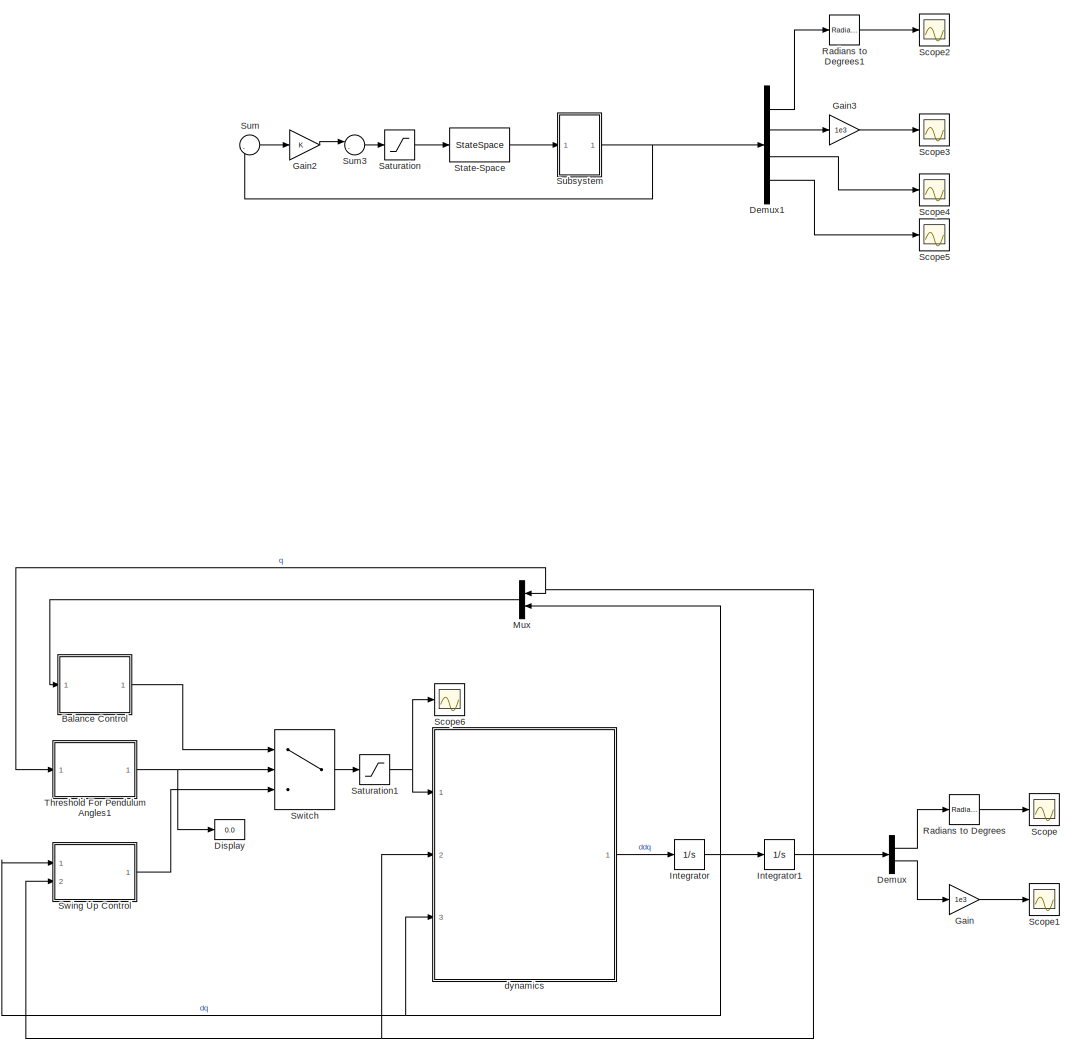
[diagram: root canvas - part 1/2, right side, full height]
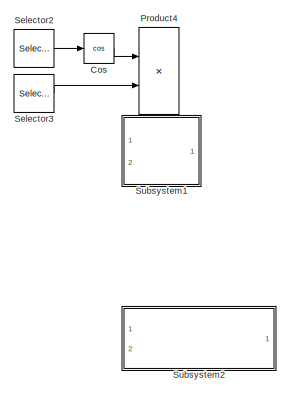
[diagram: root canvas - part 2/2, bottom left region]
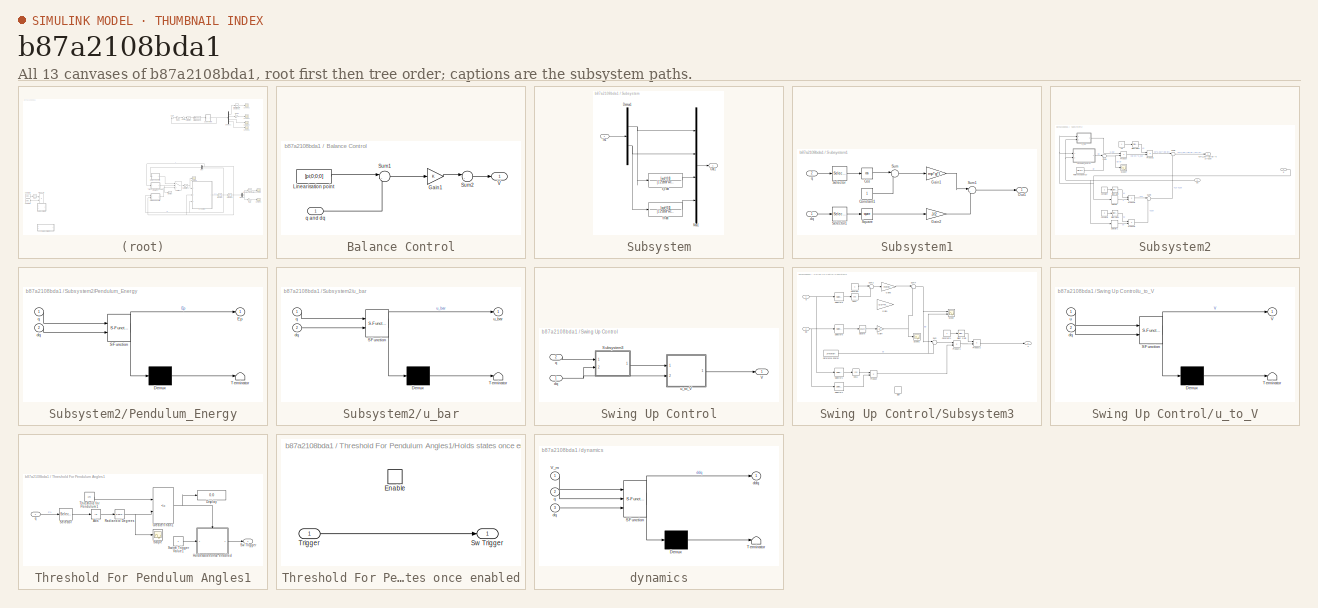
[diagram: thumbnail index - all 13 canvases of the model, root first then tree order]
MODEL slx_b87a2108bda1
KIND model
CONFIG AbsTol = auto
CONFIG EnableMultiTasking = off
CONFIG FixedStep = 0.002
CONFIG MaxStep = auto
CONFIG MinStep = auto
CONFIG RelTol = 1e-3
CONFIG SampleTimeConstraint = Unconstrained
CONFIG SolverName = ode4
CONFIG StartTime = 0.0
CONFIG StopTime = 60
BLOCK [SubSystem] Balance Control
  Ports = [1, 1]
  RequestExecContextInheritance = off
BLOCK [Gain] Balance Control/Gain1
  Gain = K
  Multiplication = Matrix(K*u)
BLOCK [Constant] Balance Control/Linearisation point
  Value = [pi;0;0;0]
BLOCK [Sum] Balance Control/Sum1
  Inputs = |-+
  Ports = [2, 1]
BLOCK [Sum] Balance Control/Sum2
  Inputs = |-+
  Ports = [2, 1]
BLOCK [Outport] Balance Control/V
BLOCK [Inport] Balance Control/q and dq
BLOCK [Trigonometry] Cos
  Commented = on
  Operator = cos
  Ports = [1, 1]
BLOCK [Demux] Demux
  Outputs = 2
  Ports = [1, 2]
BLOCK [Demux] Demux1
  Ports = [1, 4]
BLOCK [Display] Display
  Decimation = 1
  Ports = [1]
BLOCK [Gain] Gain
  Gain = 1e3
BLOCK [Gain] Gain2
  Gain = K
  Multiplication = Matrix(K*u)
BLOCK [Gain] Gain3
  Gain = 1e3
BLOCK [Integrator] Integrator
  InitialCondition = [0 0]
  Ports = [1, 1]
BLOCK [Integrator] Integrator1
  InitialCondition = [5*pi/180 0]
  Ports = [1, 1]
BLOCK [Mux] Mux
  DisplayOption = bar
  Inputs = 2
  Ports = [2, 1]
BLOCK [Product] Product4
  Commented = on
  Ports = [2, 1]
BLOCK [Reference] Radians to Degrees  REF=simulink_extras/Transformations/Radians
to Degrees
  Ports = [1, 1]
  SourceBlock = simulink_extras/Transformations/Radians\nto Degrees
  SourceProductBaseCode = SL
  SourceType = RadiansToDegrees
BLOCK [Reference] Radians to Degrees1  REF=simulink_extras/Transformations/Radians
to Degrees
  Ports = [1, 1]
  SourceBlock = simulink_extras/Transformations/Radians\nto Degrees
  SourceProductBaseCode = SL
  SourceType = RadiansToDegrees
BLOCK [Saturate] Saturation
  LowerLimit = -24
  UpperLimit = 24
BLOCK [Saturate] Saturation1
  LowerLimit = -24
  UpperLimit = 24
BLOCK [Scope] Scope
  Floating = off
  NumInputPorts = 1
  Ports = [1]
  ScopeSpecificationString = Simulink.scopes.TimeScopeBlockCfg('CurrentConfiguration', extmgr.ConfigurationSet(extmgr.Configuration('Core','General UI',true),extmgr.Configuration('Core','Source UI',true),extmgr.Configuration('Sources','WiredSimulink',true,'DataLogging',true,'DataLoggingVariableName','th1_SIM','DataLoggingSaveFormat','Array'),extmgr.Configuration('Visuals','Time Domain',true,'SerializedDisplays',{struct('MinYL...<+1496ch>
BLOCK [Scope] Scope1
  Floating = off
  NumInputPorts = 1
  Ports = [1]
  ScopeSpecificationString = Simulink.scopes.TimeScopeBlockCfg('CurrentConfiguration', extmgr.ConfigurationSet(extmgr.Configuration('Core','General UI',true),extmgr.Configuration('Core','Source UI',true),extmgr.Configuration('Sources','WiredSimulink',true,'DataLoggingVariableName','xc_SIM','DataLogging',true,'DataLoggingSaveFormat','Array'),extmgr.Configuration('Visuals','Time Domain',true,'SerializedDisplays',{struct('MinYLi...<+1424ch>
BLOCK [Scope] Scope2
  Floating = off
  NumInputPorts = 1
  Ports = [1]
  ScopeSpecificationString = Simulink.scopes.TimeScopeBlockCfg('CurrentConfiguration', extmgr.ConfigurationSet(extmgr.Configuration('Core','General UI',true),extmgr.Configuration('Core','Source UI',true),extmgr.Configuration('Sources','WiredSimulink',true,'DataLoggingVariableName','ScopeData2'),extmgr.Configuration('Visuals','Time Domain',true,'SerializedDisplays',{struct('MinYLimReal','-36.26143','MaxYLimReal','54.02905','YL...<+1764ch>
BLOCK [Scope] Scope3
  Floating = off
  NumInputPorts = 1
  Ports = [1]
  ScopeSpecificationString = Simulink.scopes.TimeScopeBlockCfg('CurrentConfiguration', extmgr.ConfigurationSet(extmgr.Configuration('Core','General UI',true),extmgr.Configuration('Core','Source UI',true),extmgr.Configuration('Sources','WiredSimulink',true,'DataLoggingVariableName','ScopeData3'),extmgr.Configuration('Visuals','Time Domain',true,'SerializedDisplays',{struct('MinYLimReal','-996.91017','MaxYLimReal','111.98601','...<+1378ch>
BLOCK [Scope] Scope4
  Floating = off
  NumInputPorts = 1
  Ports = [1]
  ScopeSpecificationString = Simulink.scopes.TimeScopeBlockCfg('CurrentConfiguration', extmgr.ConfigurationSet(extmgr.Configuration('Core','General UI',true),extmgr.Configuration('Core','Source UI',true),extmgr.Configuration('Sources','WiredSimulink',true,'DataLoggingVariableName','ScopeData4'),extmgr.Configuration('Visuals','Time Domain',true,'SerializedDisplays',{struct('MinYLimReal','-6.4718','MaxYLimReal','22.09201','YLab...<+1369ch>
BLOCK [Scope] Scope5
  Floating = off
  NumInputPorts = 1
  Ports = [1]
  ScopeSpecificationString = Simulink.scopes.TimeScopeBlockCfg('CurrentConfiguration', extmgr.ConfigurationSet(extmgr.Configuration('Core','General UI',true),extmgr.Configuration('Core','Source UI',true),extmgr.Configuration('Sources','WiredSimulink',true,'DataLoggingVariableName','ScopeData5'),extmgr.Configuration('Visuals','Time Domain',true),extmgr.Configuration('Tools','Plot Navigation',true),extmgr.Configuration('Tools',...<+40ch>
BLOCK [Scope] Scope6
  Floating = off
  NumInputPorts = 1
  Ports = [1]
  ScopeSpecificationString = Simulink.scopes.TimeScopeBlockCfg('CurrentConfiguration', extmgr.ConfigurationSet(extmgr.Configuration('Core','General UI',true),extmgr.Configuration('Core','Source UI',true),extmgr.Configuration('Sources','WiredSimulink',true,'DataLoggingVariableName','ScopeData6'),extmgr.Configuration('Visuals','Time Domain',true,'SerializedDisplays',{struct('MinYLimReal','-17.29914','MaxYLimReal','17.27034','YL...<+1376ch>
BLOCK [Selector] Selector2
  Commented = on
  IndexOptions = Index vector (dialog)
  Indices = [1]
  InputPortWidth = 2
  OutputSizes = 1
  Ports = [1, 1]
BLOCK [Selector] Selector3
  Commented = on
  IndexOptions = Index vector (dialog)
  Indices = [1]
  InputPortWidth = 2
  OutputSizes = 1
  Ports = [1, 1]
BLOCK [StateSpace] State-Space
  A = A
  B = B
  C = C1
  D = D
  InitialCondition = [45*pi/180 0 0 0]
  Ports = [1, 1]
BLOCK [SubSystem] Subsystem
  Ports = [1, 1]
  RequestExecContextInheritance = off
BLOCK [Demux] Subsystem/Demux1
  Outputs = 2
  Ports = [1, 2]
BLOCK [Inport] Subsystem/In1
BLOCK [Mux] Subsystem/Mux1
  DisplayOption = bar
  Ports = [4, 1]
BLOCK [Outport] Subsystem/Out1
BLOCK [TransferFcn] Subsystem/th dot
  Denominator = [1 2*zetaf*wcf wcf^2]
  Numerator = [wcf^2 0]
BLOCK [TransferFcn] Subsystem/x_c dot
  Denominator = [1 2*zetaf*wcf wcf^2]
  Numerator = [wcf^2 0]
BLOCK [SubSystem] Subsystem1
  Commented = on
  Ports = [2, 1]
  RequestExecContextInheritance = off
BLOCK [Constant] Subsystem1/Constant1
BLOCK [Trigonometry] Subsystem1/Cos
  Operator = cos
  Ports = [1, 1]
BLOCK [Gain] Subsystem1/Gain1
  Gain = mp*g*l
BLOCK [Gain] Subsystem1/Gain2
  Gain = J/2
BLOCK [Outport] Subsystem1/Out1
BLOCK [Selector] Subsystem1/Selector
  IndexOptions = Index vector (dialog)
  Indices = [1]
  InputPortWidth = 2
  OutputSizes = 1
  Ports = [1, 1]
BLOCK [Selector] Subsystem1/Selector1
  IndexOptions = Index vector (dialog)
  Indices = [1]
  InputPortWidth = 2
  OutputSizes = 1
  Ports = [1, 1]
BLOCK [Math] Subsystem1/Square
  Operator = square
  Ports = [1, 1]
BLOCK [Sum] Subsystem1/Sum
  Inputs = |-+
  Ports = [2, 1]
BLOCK [Sum] Subsystem1/Sum1
  Inputs = |++
  Ports = [2, 1]
BLOCK [Inport] Subsystem1/dq
BLOCK [Inport] Subsystem1/q
  Port = 2
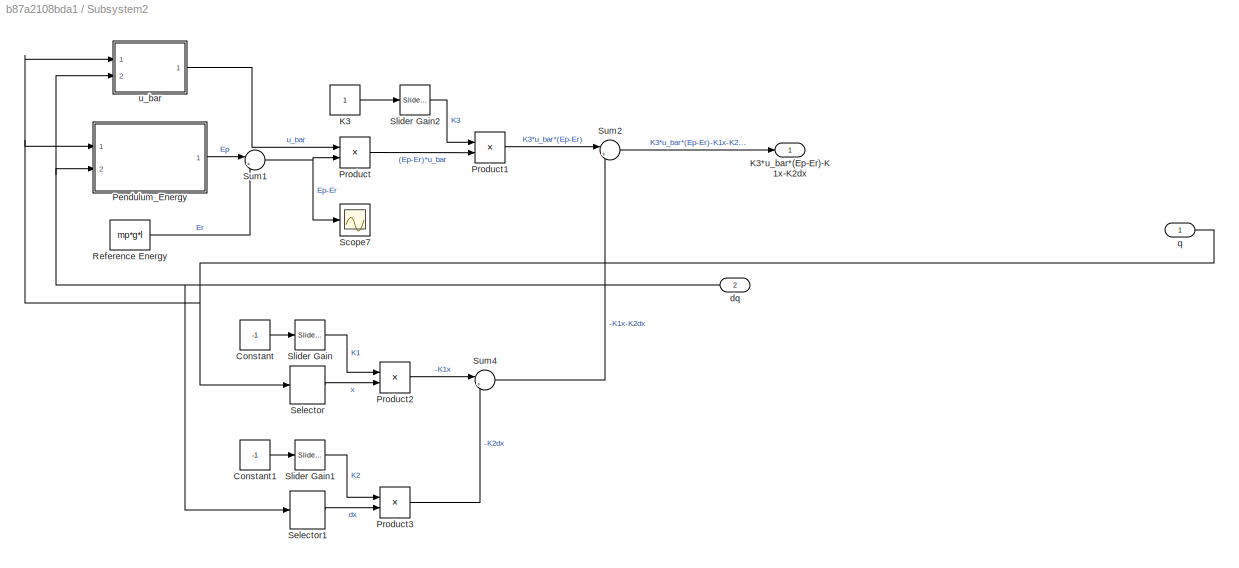
BLOCK [SubSystem] Subsystem2
  Commented = on
  Ports = [2, 1]
  RequestExecContextInheritance = off
BLOCK [Constant] Subsystem2/Constant
  Value = -1
BLOCK [Constant] Subsystem2/Constant1
  Value = -1
BLOCK [Constant] Subsystem2/K3
BLOCK [Outport] Subsystem2/K3*u_bar*(Ep-Er)-K1x-K2dx
BLOCK [SubSystem] Subsystem2/Pendulum_Energy
  ErrorFcn = Stateflow.Translate.translate
  PermitHierarchicalResolution = ExplicitOnly
  Ports = [2, 1]
  RequestExecContextInheritance = off
  SFBlockType = MATLAB Function
  TreatAsAtomicUnit = on
BLOCK [Demux] Subsystem2/Pendulum_Energy/ Demux 
  Outputs = 1
  Ports = [1, 1]
BLOCK [S-Function] Subsystem2/Pendulum_Energy/ SFunction 
  EnableBusSupport = on
  FunctionName = sf_sfun
  PortCounts = [2 2]
  Ports = [2, 2]
  SFcnIsStateOwnerBlock = off
  SFunctionDeploymentMode = off
  Tag = Stateflow S-Function 1
BLOCK [Terminator] Subsystem2/Pendulum_Energy/ Terminator 
BLOCK [Outport] Subsystem2/Pendulum_Energy/Ep
BLOCK [Inport] Subsystem2/Pendulum_Energy/dq
  Port = 2
BLOCK [Inport] Subsystem2/Pendulum_Energy/q
BLOCK [Product] Subsystem2/Product
  Ports = [2, 1]
BLOCK [Product] Subsystem2/Product1
  Ports = [2, 1]
BLOCK [Product] Subsystem2/Product2
  Ports = [2, 1]
BLOCK [Product] Subsystem2/Product3
  Ports = [2, 1]
BLOCK [Constant] Subsystem2/Reference Energy
  Value = mp*g*l
BLOCK [Scope] Subsystem2/Scope7
  Floating = off
  NumInputPorts = 1
  Ports = [1]
  ScopeSpecificationString = Simulink.scopes.TimeScopeBlockCfg('CurrentConfiguration', extmgr.ConfigurationSet(extmgr.Configuration('Core','General UI',true),extmgr.Configuration('Core','Source UI',true),extmgr.Configuration('Sources','WiredSimulink',true,'DataLoggingVariableName','ScopeData7'),extmgr.Configuration('Visuals','Time Domain',true,'SerializedDisplays',{struct('MinYLimReal','-1.49026','MaxYLimReal','-1.48618','YLa...<+1391ch>
BLOCK [Selector] Subsystem2/Selector
  IndexOptions = Index vector (dialog)
  Indices = [2]
  InputPortWidth = 2
  OutputSizes = 1
  Ports = [1, 1]
BLOCK [Selector] Subsystem2/Selector1
  IndexOptions = Index vector (dialog)
  Indices = [2]
  InputPortWidth = 2
  OutputSizes = 1
  Ports = [1, 1]
BLOCK [Reference] Subsystem2/Slider Gain  REF=simulink/Math
Operations/Slider
Gain
  Ports = [1, 1]
  SourceBlock = simulink/Math\nOperations/Slider\nGain
  SourceProductBaseCode = SL
  SourceType = Slider Gain
BLOCK [Reference] Subsystem2/Slider Gain1  REF=simulink/Math
Operations/Slider
Gain
  Ports = [1, 1]
  SourceBlock = simulink/Math\nOperations/Slider\nGain
  SourceProductBaseCode = SL
  SourceType = Slider Gain
BLOCK [Reference] Subsystem2/Slider Gain2  REF=simulink/Math
Operations/Slider
Gain
  Ports = [1, 1]
  SourceBlock = simulink/Math\nOperations/Slider\nGain
  SourceProductBaseCode = SL
  SourceType = Slider Gain
BLOCK [Sum] Subsystem2/Sum1
  Inputs = |+-
  Ports = [2, 1]
BLOCK [Sum] Subsystem2/Sum2
  Inputs = |++
  Ports = [2, 1]
BLOCK [Sum] Subsystem2/Sum4
  Inputs = |++
  Ports = [2, 1]
BLOCK [Inport] Subsystem2/dq
  Port = 2
BLOCK [Inport] Subsystem2/q
BLOCK [SubSystem] Subsystem2/u_bar
  ErrorFcn = Stateflow.Translate.translate
  PermitHierarchicalResolution = ExplicitOnly
  Ports = [2, 1]
  RequestExecContextInheritance = off
  SFBlockType = MATLAB Function
  TreatAsAtomicUnit = on
BLOCK [Demux] Subsystem2/u_bar/ Demux 
  Outputs = 1
  Ports = [1, 1]
BLOCK [S-Function] Subsystem2/u_bar/ SFunction 
  EnableBusSupport = on
  FunctionName = sf_sfun
  PortCounts = [2 2]
  Ports = [2, 2]
  SFcnIsStateOwnerBlock = off
  SFunctionDeploymentMode = off
  Tag = Stateflow S-Function 3
BLOCK [Terminator] Subsystem2/u_bar/ Terminator 
BLOCK [Inport] Subsystem2/u_bar/dq
  Port = 2
BLOCK [Inport] Subsystem2/u_bar/q
BLOCK [Outport] Subsystem2/u_bar/u_bar
BLOCK [Sum] Sum
  Inputs = |-+
  Ports = [2, 1]
BLOCK [Sum] Sum3
  Inputs = |-+
  Ports = [2, 1]
BLOCK [SubSystem] Swing Up Control
  Ports = [2, 1]
  RequestExecContextInheritance = off
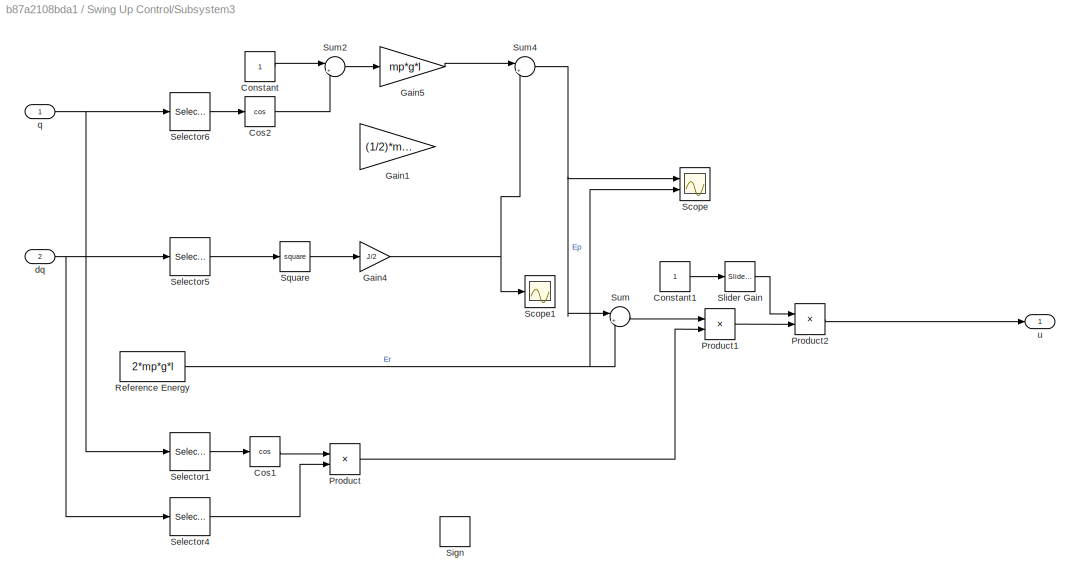
BLOCK [SubSystem] Swing Up Control/Subsystem3
  Ports = [2, 1]
  RequestExecContextInheritance = off
BLOCK [Constant] Swing Up Control/Subsystem3/Constant
BLOCK [Constant] Swing Up Control/Subsystem3/Constant1
BLOCK [Trigonometry] Swing Up Control/Subsystem3/Cos1
  Operator = cos
  Ports = [1, 1]
BLOCK [Trigonometry] Swing Up Control/Subsystem3/Cos2
  Operator = cos
  Ports = [1, 1]
BLOCK [Gain] Swing Up Control/Subsystem3/Gain1
  Commented = on
  Gain = (1/2)*mp*l^2
BLOCK [Gain] Swing Up Control/Subsystem3/Gain4
  Gain = J/2
BLOCK [Gain] Swing Up Control/Subsystem3/Gain5
  Gain = mp*g*l
BLOCK [Product] Swing Up Control/Subsystem3/Product
  Ports = [2, 1]
BLOCK [Product] Swing Up Control/Subsystem3/Product1
  Ports = [2, 1]
BLOCK [Product] Swing Up Control/Subsystem3/Product2
  Ports = [2, 1]
BLOCK [Constant] Swing Up Control/Subsystem3/Reference Energy
  Value = 2*mp*g*l
BLOCK [Scope] Swing Up Control/Subsystem3/Scope
  Floating = off
  NumInputPorts = 2
  Ports = [2]
  ScopeSpecificationString = Simulink.scopes.TimeScopeBlockCfg('CurrentConfiguration', extmgr.ConfigurationSet(extmgr.Configuration('Core','General UI',true),extmgr.Configuration('Core','Source UI',true),extmgr.Configuration('Sources','WiredSimulink',true,'DataLoggingVariableName','ScopeData8'),extmgr.Configuration('Visuals','Time Domain',true,'SerializedDisplays',{struct('MinYLimReal','-0.18498','MaxYLimReal','1.67619','YLab...<+1366ch>
BLOCK [Scope] Swing Up Control/Subsystem3/Scope1
  Floating = off
  NumInputPorts = 1
  Ports = [1]
  ScopeSpecificationString = Simulink.scopes.TimeScopeBlockCfg('CurrentConfiguration', extmgr.ConfigurationSet(extmgr.Configuration('Core','General UI',true),extmgr.Configuration('Core','Source UI',true),extmgr.Configuration('Sources','WiredSimulink',true,'DataLoggingVariableName','ScopeData9'),extmgr.Configuration('Visuals','Time Domain',true,'SerializedDisplays',{struct('MinYLimReal','-0.05121','MaxYLimReal','0.46085','YLab...<+1363ch>
BLOCK [Selector] Swing Up Control/Subsystem3/Selector1
  IndexOptions = Index vector (dialog)
  Indices = [1]
  InputPortWidth = 2
  OutputSizes = 1
  Ports = [1, 1]
BLOCK [Selector] Swing Up Control/Subsystem3/Selector4
  IndexOptions = Index vector (dialog)
  Indices = [1]
  InputPortWidth = 2
  OutputSizes = 1
  Ports = [1, 1]
BLOCK [Selector] Swing Up Control/Subsystem3/Selector5
  IndexOptions = Index vector (dialog)
  Indices = [1]
  InputPortWidth = 2
  OutputSizes = 1
  Ports = [1, 1]
BLOCK [Selector] Swing Up Control/Subsystem3/Selector6
  IndexOptions = Index vector (dialog)
  Indices = [1]
  InputPortWidth = 2
  OutputSizes = 1
  Ports = [1, 1]
BLOCK [Signum] Swing Up Control/Subsystem3/Sign
  Commented = on
BLOCK [Reference] Swing Up Control/Subsystem3/Slider Gain  REF=simulink/Math
Operations/Slider
Gain
  Ports = [1, 1]
  SourceBlock = simulink/Math\nOperations/Slider\nGain
  SourceProductBaseCode = SL
  SourceType = Slider Gain
BLOCK [Math] Swing Up Control/Subsystem3/Square
  Operator = square
  Ports = [1, 1]
BLOCK [Sum] Swing Up Control/Subsystem3/Sum
  Inputs = |+-
  Ports = [2, 1]
BLOCK [Sum] Swing Up Control/Subsystem3/Sum2
  Inputs = |+-
  Ports = [2, 1]
BLOCK [Sum] Swing Up Control/Subsystem3/Sum4
  Inputs = |++
  Ports = [2, 1]
BLOCK [Inport] Swing Up Control/Subsystem3/dq
  Port = 2
BLOCK [Inport] Swing Up Control/Subsystem3/q
BLOCK [Outport] Swing Up Control/Subsystem3/u
BLOCK [Outport] Swing Up Control/V
BLOCK [Inport] Swing Up Control/dq
BLOCK [Inport] Swing Up Control/q
  Port = 2
BLOCK [SubSystem] Swing Up Control/u_to_V
  ErrorFcn = Stateflow.Translate.translate
  PermitHierarchicalResolution = ExplicitOnly
  Ports = [2, 1]
  RequestExecContextInheritance = off
  SFBlockType = MATLAB Function
  TreatAsAtomicUnit = on
BLOCK [Demux] Swing Up Control/u_to_V/ Demux 
  Outputs = 1
  Ports = [1, 1]
BLOCK [S-Function] Swing Up Control/u_to_V/ SFunction 
  EnableBusSupport = on
  FunctionName = sf_sfun
  PortCounts = [2 2]
  Ports = [2, 2]
  SFcnIsStateOwnerBlock = off
  SFunctionDeploymentMode = off
  Tag = Stateflow S-Function 6
BLOCK [Terminator] Swing Up Control/u_to_V/ Terminator 
BLOCK [Outport] Swing Up Control/u_to_V/V
BLOCK [Inport] Swing Up Control/u_to_V/dq
  Port = 2
BLOCK [Inport] Swing Up Control/u_to_V/u
BLOCK [Switch] Switch
  Criteria = u2 > Threshold
  InputSameDT = off
  SaturateOnIntegerOverflow = off
BLOCK [SubSystem] Threshold For Pendulum Angles1
  Ports = [1, 1]
  RequestExecContextInheritance = off
BLOCK [Abs] Threshold For Pendulum Angles1/Abs
  SaturateOnIntegerOverflow = off
BLOCK [Display] Threshold For Pendulum Angles1/Display
  Decimation = 1
  Ports = [1]
BLOCK [RelationalOperator] Threshold For Pendulum Angles1/GreaterThan1
  InputSameDT = off
  Operator = <=
  OutDataTypeStr = boolean
  Ports = [2, 1]
  RndMeth = Simplest
BLOCK [SubSystem] Threshold For Pendulum Angles1/Holds states once enabled
  Ports = [1, 1, 1]
  RequestExecContextInheritance = off
  TreatAsAtomicUnit = on
BLOCK [EnablePort] Threshold For Pendulum Angles1/Holds states once enabled/Enable
  Ports = []
BLOCK [Outport] Threshold For Pendulum Angles1/Holds states once enabled/Sw Trigger
  InitialOutput = [0]
  OutDataTypeStr = double
BLOCK [Inport] Threshold For Pendulum Angles1/Holds states once enabled/Trigger
  OutDataTypeStr = double
BLOCK [Reference] Threshold For Pendulum Angles1/Radians to Degrees  REF=simulink_extras/Transformations/Radians
to Degrees
  Ports = [1, 1]
  SourceBlock = simulink_extras/Transformations/Radians\nto Degrees
  SourceProductBaseCode = SL
  SourceType = RadiansToDegrees
BLOCK [Scope] Threshold For Pendulum Angles1/Scope
  Floating = off
  NumInputPorts = 1
  Ports = [1]
  ScopeSpecificationString = Simulink.scopes.TimeScopeBlockCfg('CurrentConfiguration', extmgr.ConfigurationSet(extmgr.Configuration('Core','General UI',true),extmgr.Configuration('Core','Source UI',true),extmgr.Configuration('Sources','WiredSimulink',true,'DataLoggingVariableName','ScopeData7'),extmgr.Configuration('Visuals','Time Domain',true,'SerializedDisplays',{struct('MinYLimReal','-61.42823','MaxYLimReal','552.98698','Y...<+1431ch>
BLOCK [Selector] Threshold For Pendulum Angles1/Selector
  IndexOptions = Index vector (dialog)
  Indices = [1]
  InputPortWidth = 2
  OutputSizes = 1
  Ports = [1, 1]
BLOCK [Outport] Threshold For Pendulum Angles1/Sw Trigger
BLOCK [Constant] Threshold For Pendulum Angles1/Switch Trigger Value1
BLOCK [Constant] Threshold For Pendulum Angles1/Threshold for Pendulum 1
  Value = 170
BLOCK [Inport] Threshold For Pendulum Angles1/q
BLOCK [SubSystem] dynamics
  ErrorFcn = Stateflow.Translate.translate
  PermitHierarchicalResolution = ExplicitOnly
  Ports = [3, 1]
  RequestExecContextInheritance = off
  SFBlockType = MATLAB Function
  TreatAsAtomicUnit = on
BLOCK [Demux] dynamics/ Demux 
  Outputs = 1
  Ports = [1, 1]
BLOCK [S-Function] dynamics/ SFunction 
  EnableBusSupport = on
  FunctionName = sf_sfun
  PortCounts = [3 2]
  Ports = [3, 2]
  SFcnIsStateOwnerBlock = off
  SFunctionDeploymentMode = off
  Tag = Stateflow S-Function 2
BLOCK [Terminator] dynamics/ Terminator 
BLOCK [Inport] dynamics/V_m
BLOCK [Outport] dynamics/ddq
BLOCK [Inport] dynamics/dq
  Port = 3
BLOCK [Inport] dynamics/q
  Port = 2
LINE Balance Control/Gain1:1 -> Balance Control/Sum2:1
LINE Balance Control/Linearisation point:1 -> Balance Control/Sum1:1
LINE Balance Control/Sum1:1 -> Balance Control/Gain1:1
LINE Balance Control/Sum2:1 -> Balance Control/V:1
LINE Balance Control/q and dq:1 -> Balance Control/Sum1:2
LINE Balance Control:1 -> Switch:1
LINE Cos:1 -> Product4:1
LINE Demux1:1 -> Radians to Degrees1:1
LINE Demux1:2 -> Gain3:1
LINE Demux1:3 -> Scope4:1
LINE Demux1:4 -> Scope5:1
LINE Demux:1 -> Radians to Degrees:1
LINE Demux:2 -> Gain:1
LINE Gain2:1 -> Sum3:1
LINE Gain3:1 -> Scope3:1
LINE Gain:1 -> Scope1:1
NET Integrator1:1 -> Demux:1, Mux:1, Swing Up Control:2, Threshold For Pendulum Angles1:1, dynamics:2
NET Integrator:1 -> Integrator1:1, Mux:2, Swing Up Control:1, dynamics:3
LINE Mux:1 -> Balance Control:1
LINE Radians to Degrees1:1 -> Scope2:1
LINE Radians to Degrees:1 -> Scope:1
NET Saturation1:1 -> Scope6:1, dynamics:1
LINE Saturation:1 -> State-Space:1
LINE Selector2:1 -> Cos:1
LINE Selector3:1 -> Product4:2
LINE State-Space:1 -> Subsystem:1
NET Subsystem/Demux1:1 -> Subsystem/Mux1:1, Subsystem/x_c dot:1
NET Subsystem/Demux1:2 -> Subsystem/Mux1:2, Subsystem/th dot:1
LINE Subsystem/In1:1 -> Subsystem/Demux1:1
LINE Subsystem/Mux1:1 -> Subsystem/Out1:1
LINE Subsystem/th dot:1 -> Subsystem/Mux1:4
LINE Subsystem/x_c dot:1 -> Subsystem/Mux1:3
LINE Subsystem1/Constant1:1 -> Subsystem1/Sum:2
LINE Subsystem1/Cos:1 -> Subsystem1/Sum:1
LINE Subsystem1/Gain1:1 -> Subsystem1/Sum1:1
LINE Subsystem1/Gain2:1 -> Subsystem1/Sum1:2
LINE Subsystem1/Selector1:1 -> Subsystem1/Square:1
LINE Subsystem1/Selector:1 -> Subsystem1/Cos:1
LINE Subsystem1/Square:1 -> Subsystem1/Gain2:1
LINE Subsystem1/Sum1:1 -> Subsystem1/Out1:1
LINE Subsystem1/Sum:1 -> Subsystem1/Gain1:1
LINE Subsystem1/dq:1 -> Subsystem1/Selector1:1
LINE Subsystem1/q:1 -> Subsystem1/Selector:1
LINE Subsystem2/Constant1:1 -> Subsystem2/Slider Gain1:1
LINE Subsystem2/Constant:1 -> Subsystem2/Slider Gain:1
LINE Subsystem2/K3:1 -> Subsystem2/Slider Gain2:1
LINE Subsystem2/Pendulum_Energy:1 -> Subsystem2/Sum1:1
LINE Subsystem2/Product1:1 -> Subsystem2/Sum2:1
LINE Subsystem2/Product2:1 -> Subsystem2/Sum4:1
LINE Subsystem2/Product3:1 -> Subsystem2/Sum4:2
LINE Subsystem2/Product:1 -> Subsystem2/Product1:2
LINE Subsystem2/Reference Energy:1 -> Subsystem2/Sum1:2
LINE Subsystem2/Selector1:1 -> Subsystem2/Product3:2
LINE Subsystem2/Selector:1 -> Subsystem2/Product2:2
LINE Subsystem2/Slider Gain1:1 -> Subsystem2/Product3:1
LINE Subsystem2/Slider Gain2:1 -> Subsystem2/Product1:1
LINE Subsystem2/Slider Gain:1 -> Subsystem2/Product2:1
NET Subsystem2/Sum1:1 -> Subsystem2/Product:2, Subsystem2/Scope7:1
LINE Subsystem2/Sum2:1 -> Subsystem2/K3*u_bar*(Ep-Er)-K1x-K2dx:1
LINE Subsystem2/Sum4:1 -> Subsystem2/Sum2:2
NET Subsystem2/dq:1 -> Subsystem2/Pendulum_Energy:2, Subsystem2/Selector1:1, Subsystem2/u_bar:2
NET Subsystem2/q:1 -> Subsystem2/Pendulum_Energy:1, Subsystem2/Selector:1, Subsystem2/u_bar:1
LINE Subsystem2/u_bar:1 -> Subsystem2/Product:1
NET Subsystem:1 -> Demux1:1, Sum:2
LINE Sum3:1 -> Saturation:1
LINE Sum:1 -> Gain2:1
LINE Swing Up Control/Subsystem3/Constant1:1 -> Swing Up Control/Subsystem3/Slider Gain:1
LINE Swing Up Control/Subsystem3/Constant:1 -> Swing Up Control/Subsystem3/Sum2:1
LINE Swing Up Control/Subsystem3/Cos1:1 -> Swing Up Control/Subsystem3/Product:1
LINE Swing Up Control/Subsystem3/Cos2:1 -> Swing Up Control/Subsystem3/Sum2:2
NET Swing Up Control/Subsystem3/Gain4:1 -> Swing Up Control/Subsystem3/Scope1:1, Swing Up Control/Subsystem3/Sum4:2
LINE Swing Up Control/Subsystem3/Gain5:1 -> Swing Up Control/Subsystem3/Sum4:1
LINE Swing Up Control/Subsystem3/Product1:1 -> Swing Up Control/Subsystem3/Product2:2
LINE Swing Up Control/Subsystem3/Product2:1 -> Swing Up Control/Subsystem3/u:1
LINE Swing Up Control/Subsystem3/Product:1 -> Swing Up Control/Subsystem3/Product1:2
NET Swing Up Control/Subsystem3/Reference Energy:1 -> Swing Up Control/Subsystem3/Scope:2, Swing Up Control/Subsystem3/Sum:2
LINE Swing Up Control/Subsystem3/Selector1:1 -> Swing Up Control/Subsystem3/Cos1:1
LINE Swing Up Control/Subsystem3/Selector4:1 -> Swing Up Control/Subsystem3/Product:2
LINE Swing Up Control/Subsystem3/Selector5:1 -> Swing Up Control/Subsystem3/Square:1
LINE Swing Up Control/Subsystem3/Selector6:1 -> Swing Up Control/Subsystem3/Cos2:1
LINE Swing Up Control/Subsystem3/Slider Gain:1 -> Swing Up Control/Subsystem3/Product2:1
LINE Swing Up Control/Subsystem3/Square:1 -> Swing Up Control/Subsystem3/Gain4:1
LINE Swing Up Control/Subsystem3/Sum2:1 -> Swing Up Control/Subsystem3/Gain5:1
NET Swing Up Control/Subsystem3/Sum4:1 -> Swing Up Control/Subsystem3/Scope:1, Swing Up Control/Subsystem3/Sum:1
LINE Swing Up Control/Subsystem3/Sum:1 -> Swing Up Control/Subsystem3/Product1:1
NET Swing Up Control/Subsystem3/dq:1 -> Swing Up Control/Subsystem3/Selector4:1, Swing Up Control/Subsystem3/Selector5:1
NET Swing Up Control/Subsystem3/q:1 -> Swing Up Control/Subsystem3/Selector1:1, Swing Up Control/Subsystem3/Selector6:1
LINE Swing Up Control/Subsystem3:1 -> Swing Up Control/u_to_V:1
NET Swing Up Control/dq:1 -> Swing Up Control/Subsystem3:2, Swing Up Control/u_to_V:2
LINE Swing Up Control/q:1 -> Swing Up Control/Subsystem3:1
LINE Swing Up Control/u_to_V:1 -> Swing Up Control/V:1
LINE Swing Up Control:1 -> Switch:3
LINE Switch:1 -> Saturation1:1
LINE Threshold For Pendulum Angles1/Abs:1 -> Threshold For Pendulum Angles1/Radians to Degrees:1
NET Threshold For Pendulum Angles1/GreaterThan1:1 -> Threshold For Pendulum Angles1/Display:1, Threshold For Pendulum Angles1/Holds states once enabled:enable
LINE Threshold For Pendulum Angles1/Holds states once enabled/Trigger:1 -> Threshold For Pendulum Angles1/Holds states once enabled/Sw Trigger:1
LINE Threshold For Pendulum Angles1/Holds states once enabled:1 -> Threshold For Pendulum Angles1/Sw Trigger:1
NET Threshold For Pendulum Angles1/Radians to Degrees:1 -> Threshold For Pendulum Angles1/GreaterThan1:2, Threshold For Pendulum Angles1/Scope:1
LINE Threshold For Pendulum Angles1/Selector:1 -> Threshold For Pendulum Angles1/Abs:1
LINE Threshold For Pendulum Angles1/Switch Trigger Value1:1 -> Threshold For Pendulum Angles1/Holds states once enabled:1
LINE Threshold For Pendulum Angles1/Threshold for Pendulum 1:1 -> Threshold For Pendulum Angles1/GreaterThan1:1
LINE Threshold For Pendulum Angles1/q:1 -> Threshold For Pendulum Angles1/Selector:1
NET Threshold For Pendulum Angles1:1 -> Display:1, Switch:2
LINE dynamics:1 -> Integrator:1
note: NET lines group one-source signal fan-out (src -> all destinations, sorted); 1:1 wires keep LINE
CHART Subsystem2/Pendulum_Energy states=1 transitions=1
  STATE_LABEL 'eML_blk_kernel()'
  STATE_LABEL 'SCRIPT:\nfunction Ep = Pendulum_Energy(q,dq)\n%#codegen\n\n%    This function was generated by the Symbolic Math Toolbox version 8.7.\n%    25-Oct-2022 17:45:25\n\nth = q(1);\ndth = dq(1);\n\ng = 9.81;\nmp = 0.230;\nl = 0.3302;\nJ = 0.0073;\n\nt2 = dth.^2;\nEp = (J.*t2)./2.0+(l.^2.*mp.*t2)./2.0-g.*l.*mp.*cos(th);\n'
CHART dynamics states=1 transitions=1
  STATE_LABEL 'eML_blk_kernel()'
  STATE_LABEL 'SCRIPT:\nfunction ddq = dynamics(V_m,q,dq)\n%#codegen\n\n%    This function was generated by the Symbolic Math Toolbox version 8.7.\n%    25-Oct-2022 12:32:13\n\nth = q(1);\ndth = dq(1);\ndx = dq(2);\n\ng = 9.81;\nmp = 0.230;\nmc = 0.57;\nl = 0.3302;\nBc = 9.3378;\nBp = 0.0019;\nJ = 0.0073;\n\nR_m = 2.6; \nk_t = 0.00767;\nn_m = 1;\nk_m = 0.00767;\nK_g = 3.71;\nn_g = 1;\nr_mp = 6.35*10^(-3);\n\nt2 = cos(th);\nt3 = sin(th);\nt4...<+803ch>'
CHART Subsystem2/u_bar states=1 transitions=1
  STATE_LABEL 'eML_blk_kernel()'
  STATE_LABEL 'SCRIPT:\nfunction u_bar = u_bar(q,dq)\n%#codegen\n\n%    This function was generated by the Symbolic Math Toolbox version 8.7.\n\nth = q(1);\ndth = dq(1);\n\nmp = 0.230;\nl = 0.3302;\n\nu_bar = dth.*l.*mp.*cos(th);\n'
CHART Swing Up Control/u_to_V states=1 transitions=1
  STATE_LABEL 'eML_blk_kernel()'
  STATE_LABEL 'SCRIPT:\nfunction V = u_to_V(u,dq)\n%#codegen\n\n%    This function was generated by the Symbolic Math Toolbox version 8.7.\n%    26-Oct-2022 11:43:40\n\ndx = dq(2);\n\nmc = 0.57;\n\nR_m = 2.6; \nk_t = 0.00767;\nn_m = 1;\nk_m = 0.00767;\nK_g = 3.71;\nn_g = 1;\nr_mp = 6.35*10^(-3);\n\nV = (K_g.*dx.*k_m)./r_mp+(R_m.*mc.*r_mp.*u)./(K_g.*k_t.*n_g.*n_m);\n'
CHART  states=0 transitions=0
CHART  states=0 transitions=0
CHART  states=0 transitions=0
CHART  states=0 transitions=0
